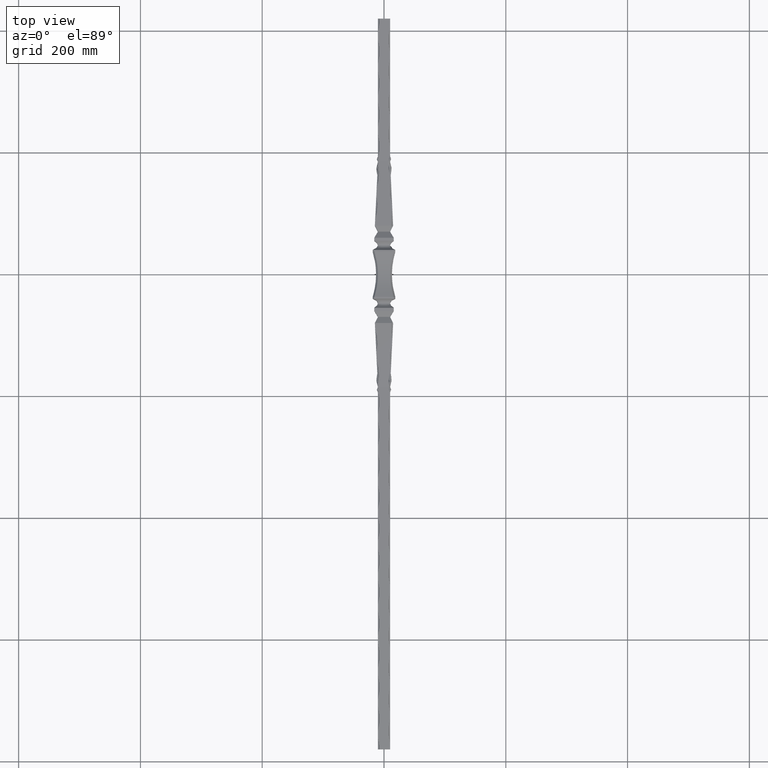
[diagram: clean part render]
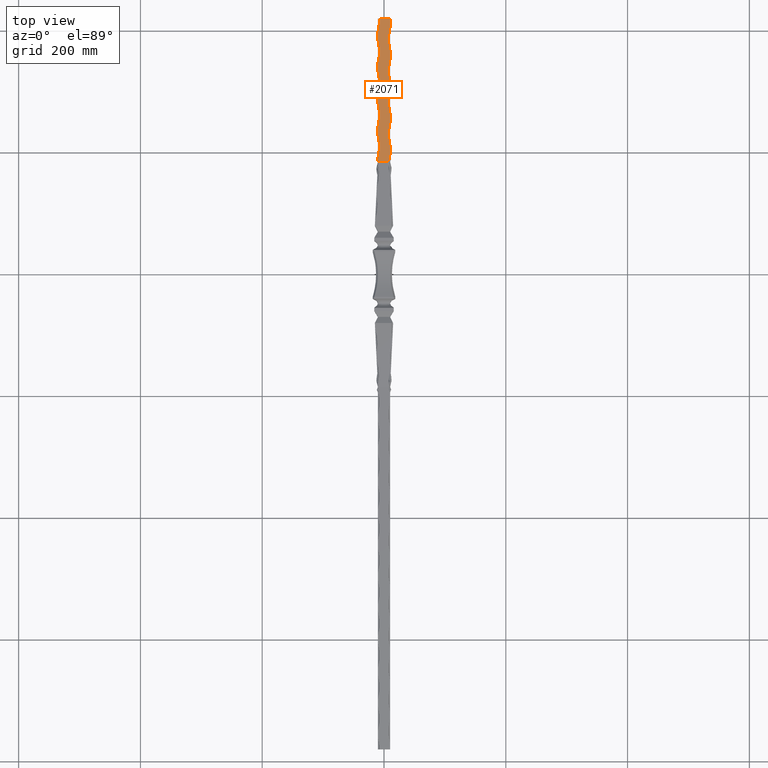
[diagram: same view with one face highlighted and labeled with its STEP entity id]
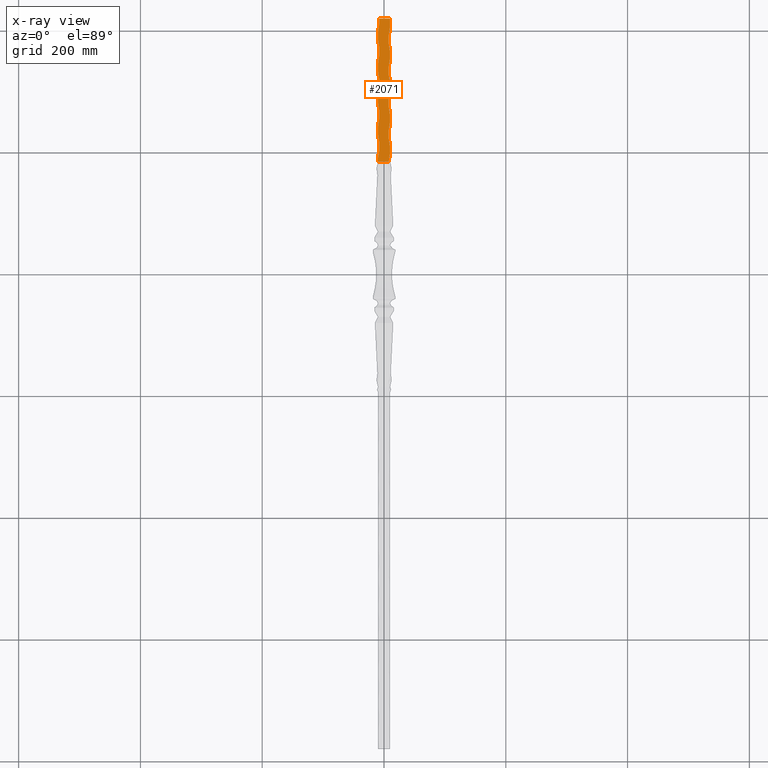
[diagram: x-ray of the same camera — body ghosted, the highlighted face saturated]
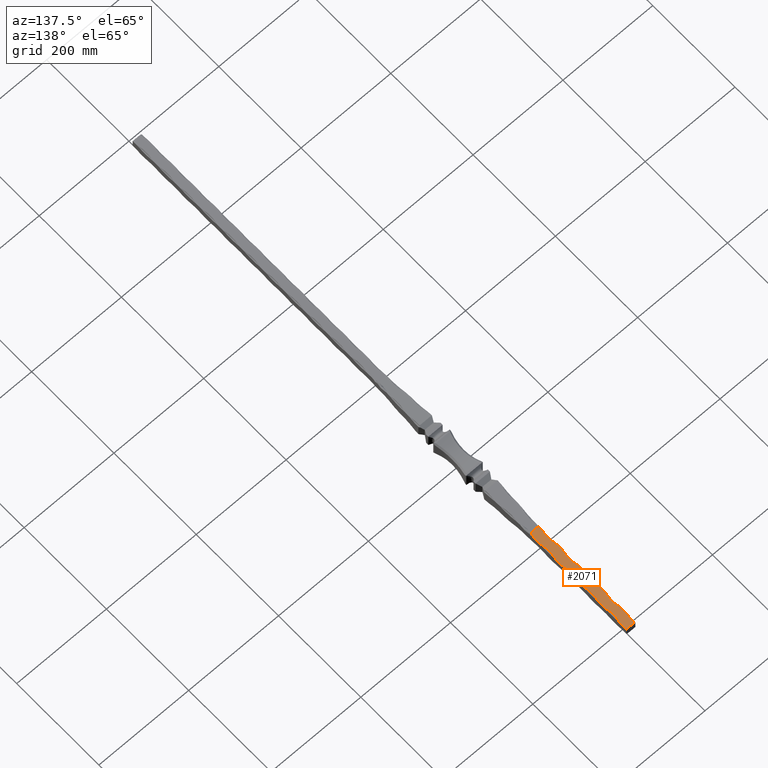
[diagram: same view with one face highlighted and labeled with its STEP entity id]
A machine part, top view. The second image highlights one B-rep face of the part: STEP entity #2071.
The next image is the same camera in x-ray: the body ghosted, the highlighted face saturated — about 0% of this face is hidden behind the body in this view.
A second angle (auxiliary view) of the same face is appended — the face is thin or edge-on in the first view.
In plain terms, the highlighted planar face has unit normal (0, 0, -1).
Its self-contained STEP definition (entity closure, byte-faithful):
#60 = DIRECTION ( 'NONE',  ( 0.000000000000000000, 0.000000000000000000, -1.000000000000000000 ) ) ;
#157 = CIRCLE ( 'NONE', #16085, 81.25000000000014211 ) ;
#267 = DIRECTION ( 'NONE',  ( -1.000000000000000000, 0.000000000000000000, 0.000000000000000000 ) ) ;
#363 = AXIS2_PLACEMENT_3D ( 'NONE', #1153, #60, #12587 ) ;
#414 = VECTOR ( 'NONE', #4325, 1000.000000000000000 ) ;
#455 = LINE ( 'NONE', #8635, #4330 ) ;
#489 = CARTESIAN_POINT ( 'NONE',  ( 88.75000000000036948, 386.0000000000000000, 9.999999999999319655 ) ) ;
#550 = CARTESIAN_POINT ( 'NONE',  ( 10.00000000000024336, 354.0000000000000568, 9.999999999999221956 ) ) ;
#568 = CARTESIAN_POINT ( 'NONE',  ( -10.00000000000083666, 346.0000000000000000, 10.00000000000000355 ) ) ;
#585 = LINE ( 'NONE', #13523, #7432 ) ;
#804 = VECTOR ( 'NONE', #13164, 1000.000000000000000 ) ;
#1121 = CARTESIAN_POINT ( 'NONE',  ( -7.524619114467154368, 420.0000000000000000, 10.00000000000000355 ) ) ;
#1130 = CARTESIAN_POINT ( 'NONE',  ( 88.75000000000049738, 178.0000000000000568, 9.999999999998928857 ) ) ;
#1139 = LINE ( 'NONE', #5008, #5456 ) ;
#1153 = CARTESIAN_POINT ( 'NONE',  ( 88.75000000000044054, 282.0000000000000000, 9.999999999999124256 ) ) ;
#1235 = DIRECTION ( 'NONE',  ( -0.000000000000000000, -1.000000000000000000, -0.000000000000000000 ) ) ;
#1242 = CARTESIAN_POINT ( 'NONE',  ( -88.75000000000098055, 366.0000000000000000, 10.00000000000000355 ) ) ;
#1275 = DIRECTION ( 'NONE',  ( 1.000000000000000000, 0.000000000000000000, 0.000000000000000000 ) ) ;
#1396 = CARTESIAN_POINT ( 'NONE',  ( 88.75000000000039790, 334.0000000000000000, 9.999999999999221956 ) ) ;
#1437 = DIRECTION ( 'NONE',  ( -0.000000000000000000, -1.000000000000000000, -0.000000000000000000 ) ) ;
#1511 = CARTESIAN_POINT ( 'NONE',  ( 7.802100089008209949, 185.0000000000000568, 9.999999999998928857 ) ) ;
#1602 = DIRECTION ( 'NONE',  ( -1.000000000000000000, 0.000000000000000000, 0.000000000000000000 ) ) ;
#1734 = ORIENTED_EDGE ( 'NONE', *, *, #8901, .T. ) ;
#1819 = CARTESIAN_POINT ( 'NONE',  ( 10.00000000000021139, 406.0000000000000000, 9.999999999999319655 ) ) ;
#2071 = ADVANCED_FACE ( 'NONE', ( #4288 ), #12557, .F. ) ;
#2081 = DIRECTION ( 'NONE',  ( -1.000000000000000000, 0.000000000000000000, 0.000000000000000000 ) ) ;
#2196 = ORIENTED_EDGE ( 'NONE', *, *, #4353, .T. ) ;
#2213 = DIRECTION ( 'NONE',  ( 1.000000000000000000, -0.000000000000000000, 0.000000000000000000 ) ) ;
#2330 = DIRECTION ( 'NONE',  ( -1.000000000000000000, 0.000000000000000000, 0.000000000000000000 ) ) ;
#2481 = CIRCLE ( 'NONE', #3539, 81.25000000000015632 ) ;
#2616 = EDGE_CURVE ( 'NONE', #3775, #4589, #3548, .T. ) ;
#2651 = DIRECTION ( 'NONE',  ( -1.000000000000000000, 0.000000000000000000, -0.000000000000000000 ) ) ;
#2782 = CARTESIAN_POINT ( 'NONE',  ( -88.75000000000133582, 209.9999999999999716, 10.00000000000000355 ) ) ;
#2862 = DIRECTION ( 'NONE',  ( -0.000000000000000000, -1.000000000000000000, -0.000000000000000000 ) ) ;
#3130 = VERTEX_POINT ( 'NONE', #568 ) ;
#3358 = CIRCLE ( 'NONE', #5136, 81.25000000000015632 ) ;
#3434 = ORIENTED_EDGE ( 'NONE', *, *, #7470, .T. ) ;
#3523 = AXIS2_PLACEMENT_3D ( 'NONE', #9897, #8482, #2330 ) ;
#3539 = AXIS2_PLACEMENT_3D ( 'NONE', #11005, #11216, #267 ) ;
#3548 = CIRCLE ( 'NONE', #4742, 81.25000000000012790 ) ;
#3562 = ORIENTED_EDGE ( 'NONE', *, *, #15142, .F. ) ;
#3605 = EDGE_CURVE ( 'NONE', #5842, #10032, #15010, .T. ) ;
#3643 = ORIENTED_EDGE ( 'NONE', *, *, #13001, .T. ) ;
#3775 = VERTEX_POINT ( 'NONE', #1121 ) ;
#4076 = CARTESIAN_POINT ( 'NONE',  ( -9.999999999999998224, 185.0000000000000000, 10.00000000000000355 ) ) ;
#4080 = CARTESIAN_POINT ( 'NONE',  ( 10.00000000000027178, 302.0000000000000568, 9.999999999999124256 ) ) ;
#4086 = EDGE_CURVE ( 'NONE', #10032, #10499, #11324, .T. ) ;
#4221 = VECTOR ( 'NONE', #11100, 1000.000000000000000 ) ;
#4283 = CIRCLE ( 'NONE', #3523, 81.25000000000014211 ) ;
#4288 = FACE_OUTER_BOUND ( 'NONE', #13156, .T. ) ;
#4325 = DIRECTION ( 'NONE',  ( -0.000000000000000000, -1.000000000000000000, -0.000000000000000000 ) ) ;
#4330 = VECTOR ( 'NONE', #2213, 1000.000000000000000 ) ;
#4353 = EDGE_CURVE ( 'NONE', #7944, #3130, #157, .T. ) ;
#4421 = ORIENTED_EDGE ( 'NONE', *, *, #16066, .T. ) ;
#4589 = VERTEX_POINT ( 'NONE', #13139 ) ;
#4601 = ORIENTED_EDGE ( 'NONE', *, *, #3605, .T. ) ;
#4610 = VERTEX_POINT ( 'NONE', #550 ) ;
#4620 = DIRECTION ( 'NONE',  ( -0.000000000000000000, -1.000000000000000000, -0.000000000000000000 ) ) ;
#4742 = AXIS2_PLACEMENT_3D ( 'NONE', #6980, #5884, #2081 ) ;
#4870 = CARTESIAN_POINT ( 'NONE',  ( -9.999999999999998224, 868.2842712474619020, 10.00000000000000355 ) ) ;
#4984 = ORIENTED_EDGE ( 'NONE', *, *, #11987, .T. ) ;
#5008 = CARTESIAN_POINT ( 'NONE',  ( 10.00000000000000178, 868.2842712474619020, 10.00000000000000355 ) ) ;
#5019 = CARTESIAN_POINT ( 'NONE',  ( -9.999999999999998224, 868.2842712474619020, 10.00000000000000355 ) ) ;
#5131 = CARTESIAN_POINT ( 'NONE',  ( 10.00000000000030909, 209.9999999999960778, 10.00000000000000888 ) ) ;
#5136 = AXIS2_PLACEMENT_3D ( 'NONE', #10010, #11325, #6200 ) ;
#5202 = CARTESIAN_POINT ( 'NONE',  ( -10.00000000000119726, 189.9999999999999432, 10.00000000000000355 ) ) ;
#5266 = EDGE_CURVE ( 'NONE', #3130, #14441, #13714, .T. ) ;
#5332 = CARTESIAN_POINT ( 'NONE',  ( 88.75000000000034106, 438.0000000000000000, 9.999999999999417355 ) ) ;
#5334 = DIRECTION ( 'NONE',  ( -1.000000000000000000, 0.000000000000000000, 0.000000000000000000 ) ) ;
#5456 = VECTOR ( 'NONE', #1437, 1000.000000000000000 ) ;
#5509 = VERTEX_POINT ( 'NONE', #5131 ) ;
#5706 = CIRCLE ( 'NONE', #8452, 81.25000000000015632 ) ;
#5786 = VERTEX_POINT ( 'NONE', #9238 ) ;
#5842 = VERTEX_POINT ( 'NONE', #9287 ) ;
#5884 = DIRECTION ( 'NONE',  ( 0.000000000000000000, 0.000000000000000000, -1.000000000000000000 ) ) ;
#5887 = LINE ( 'NONE', #8210, #804 ) ;
#5971 = DIRECTION ( 'NONE',  ( -1.000000000000000000, 0.000000000000000000, 0.000000000000000000 ) ) ;
#6200 = DIRECTION ( 'NONE',  ( -1.000000000000000000, 0.000000000000000000, 0.000000000000000000 ) ) ;
#6293 = VERTEX_POINT ( 'NONE', #13601 ) ;
#6335 = CIRCLE ( 'NONE', #363, 81.25000000000015632 ) ;
#6375 = CARTESIAN_POINT ( 'NONE',  ( -9.999999999999998224, 185.0000000000000000, 10.00000000000000355 ) ) ;
#6403 = ORIENTED_EDGE ( 'NONE', *, *, #10349, .T. ) ;
#6699 = AXIS2_PLACEMENT_3D ( 'NONE', #5332, #7771, #7711 ) ;
#6980 = CARTESIAN_POINT ( 'NONE',  ( -88.75000000000085265, 418.0000000000000000, 10.00000000000000355 ) ) ;
#7074 = AXIS2_PLACEMENT_3D ( 'NONE', #2782, #11389, #13907 ) ;
#7432 = VECTOR ( 'NONE', #4620, 1000.000000000000000 ) ;
#7449 = DIRECTION ( 'NONE',  ( 0.000000000000000000, 0.000000000000000000, -1.000000000000000000 ) ) ;
#7470 = EDGE_CURVE ( 'NONE', #5786, #11463, #6335, .T. ) ;
#7693 = ORIENTED_EDGE ( 'NONE', *, *, #13579, .F. ) ;
#7711 = DIRECTION ( 'NONE',  ( -1.000000000000000000, 0.000000000000000000, 0.000000000000000000 ) ) ;
#7771 = DIRECTION ( 'NONE',  ( 0.000000000000000000, 0.000000000000000000, -1.000000000000000000 ) ) ;
#7941 = CARTESIAN_POINT ( 'NONE',  ( -10.00000000000107825, 282.0000000000000000, 10.00000000000000888 ) ) ;
#7944 = VERTEX_POINT ( 'NONE', #12689 ) ;
#8031 = DIRECTION ( 'NONE',  ( -0.000000000000000000, -1.000000000000000000, -0.000000000000000000 ) ) ;
#8050 = CARTESIAN_POINT ( 'NONE',  ( -9.999999999999998224, 868.2842712474619020, 10.00000000000000355 ) ) ;
#8136 = VERTEX_POINT ( 'NONE', #8260 ) ;
#8210 = CARTESIAN_POINT ( 'NONE',  ( 10.00000000000000178, 868.2842712474619020, 10.00000000000000355 ) ) ;
#8216 = CARTESIAN_POINT ( 'NONE',  ( -9.999999999999998224, 868.2842712474619020, 10.00000000000000355 ) ) ;
#8239 = ORIENTED_EDGE ( 'NONE', *, *, #9914, .T. ) ;
#8260 = CARTESIAN_POINT ( 'NONE',  ( 10.00000000000030198, 250.0000000000000000, 9.999999999999026556 ) ) ;
#8269 = LINE ( 'NONE', #8050, #414 ) ;
#8452 = AXIS2_PLACEMENT_3D ( 'NONE', #1130, #7449, #5971 ) ;
#8482 = DIRECTION ( 'NONE',  ( 0.000000000000000000, 0.000000000000000000, -1.000000000000000000 ) ) ;
#8635 = CARTESIAN_POINT ( 'NONE',  ( -9.999999999999998224, 420.0000000000000000, 10.00000000000000355 ) ) ;
#8901 = EDGE_CURVE ( 'NONE', #10499, #15625, #10075, .T. ) ;
#8982 = VERTEX_POINT ( 'NONE', #7941 ) ;
#8995 = DIRECTION ( 'NONE',  ( -0.000000000000000000, -1.000000000000000000, -0.000000000000000000 ) ) ;
#9000 = CARTESIAN_POINT ( 'NONE',  ( 9.518929705575912337, 420.0000000000000000, 10.00000000000000355 ) ) ;
#9238 = CARTESIAN_POINT ( 'NONE',  ( 10.00000000000027889, 261.9999999999965326, 10.00000000000000888 ) ) ;
#9287 = CARTESIAN_POINT ( 'NONE',  ( -10.00000000000119726, 229.9999999999999716, 10.00000000000000888 ) ) ;
#9452 = CIRCLE ( 'NONE', #15339, 81.25000000000015632 ) ;
#9461 = CARTESIAN_POINT ( 'NONE',  ( -9.999999999999998224, 868.2842712474619020, 10.00000000000000355 ) ) ;
#9648 = ORIENTED_EDGE ( 'NONE', *, *, #5266, .T. ) ;
#9849 = CARTESIAN_POINT ( 'NONE',  ( 10.00000000000000178, 868.2842712474619020, 10.00000000000000355 ) ) ;
#9897 = CARTESIAN_POINT ( 'NONE',  ( -88.75000000000109424, 314.0000000000000000, 10.00000000000000355 ) ) ;
#9914 = EDGE_CURVE ( 'NONE', #8982, #6293, #3358, .T. ) ;
#9960 = LINE ( 'NONE', #15454, #14050 ) ;
#10010 = CARTESIAN_POINT ( 'NONE',  ( -88.75000000000122213, 262.0000000000000000, 10.00000000000000355 ) ) ;
#10032 = VERTEX_POINT ( 'NONE', #5202 ) ;
#10035 = CIRCLE ( 'NONE', #11994, 81.25000000000015632 ) ;
#10074 = CARTESIAN_POINT ( 'NONE',  ( 10.00000000000033396, 198.0000000000000568, 9.999999999998928857 ) ) ;
#10075 = LINE ( 'NONE', #6375, #13406 ) ;
#10215 = DIRECTION ( 'NONE',  ( 0.000000000000000000, 0.000000000000000000, -1.000000000000000000 ) ) ;
#10277 = EDGE_CURVE ( 'NONE', #3775, #16072, #455, .T. ) ;
#10349 = EDGE_CURVE ( 'NONE', #15625, #14995, #5706, .T. ) ;
#10465 = CARTESIAN_POINT ( 'NONE',  ( 10.00000000000025047, 313.9999999999968736, 10.00000000000000888 ) ) ;
#10499 = VERTEX_POINT ( 'NONE', #4076 ) ;
#10524 = ORIENTED_EDGE ( 'NONE', *, *, #2616, .T. ) ;
#10737 = VECTOR ( 'NONE', #8031, 1000.000000000000000 ) ;
#11005 = CARTESIAN_POINT ( 'NONE',  ( 88.75000000000046896, 229.9999999999999716, 9.999999999999026556 ) ) ;
#11008 = ORIENTED_EDGE ( 'NONE', *, *, #12737, .F. ) ;
#11100 = DIRECTION ( 'NONE',  ( -0.000000000000000000, -1.000000000000000000, -0.000000000000000000 ) ) ;
#11116 = ORIENTED_EDGE ( 'NONE', *, *, #13460, .T. ) ;
#11198 = ORIENTED_EDGE ( 'NONE', *, *, #13582, .T. ) ;
#11216 = DIRECTION ( 'NONE',  ( 0.000000000000000000, 0.000000000000000000, -1.000000000000000000 ) ) ;
#11234 = EDGE_CURVE ( 'NONE', #5509, #14995, #5887, .T. ) ;
#11324 = LINE ( 'NONE', #8216, #4221 ) ;
#11325 = DIRECTION ( 'NONE',  ( 0.000000000000000000, 0.000000000000000000, -1.000000000000000000 ) ) ;
#11388 = EDGE_CURVE ( 'NONE', #12845, #4610, #10035, .T. ) ;
#11389 = DIRECTION ( 'NONE',  ( 0.000000000000000000, 0.000000000000000000, -1.000000000000000000 ) ) ;
#11463 = VERTEX_POINT ( 'NONE', #4080 ) ;
#11514 = CIRCLE ( 'NONE', #6699, 81.25000000000015632 ) ;
#11607 = EDGE_CURVE ( 'NONE', #13608, #12477, #9452, .T. ) ;
#11693 = ORIENTED_EDGE ( 'NONE', *, *, #11607, .T. ) ;
#11839 = ORIENTED_EDGE ( 'NONE', *, *, #15612, .F. ) ;
#11987 = EDGE_CURVE ( 'NONE', #16094, #8982, #8269, .T. ) ;
#11994 = AXIS2_PLACEMENT_3D ( 'NONE', #1396, #10215, #1602 ) ;
#12001 = DIRECTION ( 'NONE',  ( -0.000000000000000000, -1.000000000000000000, -0.000000000000000000 ) ) ;
#12123 = CARTESIAN_POINT ( 'NONE',  ( -10.00000000000095746, 334.0000000000000000, 10.00000000000000888 ) ) ;
#12223 = EDGE_CURVE ( 'NONE', #14441, #16094, #4283, .T. ) ;
#12346 = LINE ( 'NONE', #9849, #16028 ) ;
#12477 = VERTEX_POINT ( 'NONE', #1819 ) ;
#12557 = PLANE ( 'NONE',  #13382 ) ;
#12587 = DIRECTION ( 'NONE',  ( -1.000000000000000000, 0.000000000000000000, 0.000000000000000000 ) ) ;
#12689 = CARTESIAN_POINT ( 'NONE',  ( -10.00000000000083666, 386.0000000000000000, 10.00000000000000888 ) ) ;
#12697 = CARTESIAN_POINT ( 'NONE',  ( 10.00000000000021849, 365.9999999999972715, 10.00000000000000888 ) ) ;
#12730 = DIRECTION ( 'NONE',  ( 0.000000000000000000, 0.000000000000000000, -1.000000000000000000 ) ) ;
#12737 = EDGE_CURVE ( 'NONE', #12845, #11463, #1139, .T. ) ;
#12845 = VERTEX_POINT ( 'NONE', #10465 ) ;
#12855 = CARTESIAN_POINT ( 'NONE',  ( -10.00000000000095746, 294.0000000000000000, 10.00000000000000355 ) ) ;
#12926 = VECTOR ( 'NONE', #12001, 1000.000000000000000 ) ;
#13001 = EDGE_CURVE ( 'NONE', #6293, #5842, #585, .T. ) ;
#13020 = DIRECTION ( 'NONE',  ( 0.000000000000000000, 0.000000000000000000, -1.000000000000000000 ) ) ;
#13045 = CARTESIAN_POINT ( 'NONE',  ( 10.00000000000000178, 868.2842712474619020, 10.00000000000000355 ) ) ;
#13139 = CARTESIAN_POINT ( 'NONE',  ( -10.00000000000071587, 397.9999999999999432, 10.00000000000000355 ) ) ;
#13156 = EDGE_LOOP ( 'NONE', ( #3643, #4601, #13998, #1734, #6403, #15963, #11198, #7693, #3434, #11008, #13533, #3562, #11693, #11839, #4421, #15941, #10524, #11116, #2196, #9648, #15124, #4984, #8239 ) ) ;
#13164 = DIRECTION ( 'NONE',  ( -0.000000000000000000, -1.000000000000000000, -0.000000000000000000 ) ) ;
#13382 = AXIS2_PLACEMENT_3D ( 'NONE', #5019, #15102, #2651 ) ;
#13406 = VECTOR ( 'NONE', #1275, 1000.000000000000000 ) ;
#13460 = EDGE_CURVE ( 'NONE', #4589, #7944, #15641, .T. ) ;
#13469 = LINE ( 'NONE', #13045, #10737 ) ;
#13523 = CARTESIAN_POINT ( 'NONE',  ( -9.999999999999998224, 868.2842712474619020, 10.00000000000000355 ) ) ;
#13533 = ORIENTED_EDGE ( 'NONE', *, *, #11388, .T. ) ;
#13579 = EDGE_CURVE ( 'NONE', #5786, #8136, #12346, .T. ) ;
#13582 = EDGE_CURVE ( 'NONE', #5509, #8136, #2481, .T. ) ;
#13601 = CARTESIAN_POINT ( 'NONE',  ( -10.00000000000107825, 242.0000000000000000, 10.00000000000000355 ) ) ;
#13608 = VERTEX_POINT ( 'NONE', #12697 ) ;
#13714 = LINE ( 'NONE', #9461, #12926 ) ;
#13824 = DIRECTION ( 'NONE',  ( -1.000000000000000000, 0.000000000000000000, 0.000000000000000000 ) ) ;
#13907 = DIRECTION ( 'NONE',  ( -1.000000000000000000, 0.000000000000000000, 0.000000000000000000 ) ) ;
#13952 = CARTESIAN_POINT ( 'NONE',  ( 10.00000000000018296, 418.0000000000000000, 9.999999999999417355 ) ) ;
#13998 = ORIENTED_EDGE ( 'NONE', *, *, #4086, .T. ) ;
#14050 = VECTOR ( 'NONE', #8995, 1000.000000000000000 ) ;
#14441 = VERTEX_POINT ( 'NONE', #12123 ) ;
#14472 = VECTOR ( 'NONE', #1235, 1000.000000000000000 ) ;
#14985 = VERTEX_POINT ( 'NONE', #13952 ) ;
#14995 = VERTEX_POINT ( 'NONE', #10074 ) ;
#15010 = CIRCLE ( 'NONE', #7074, 81.25000000000014211 ) ;
#15102 = DIRECTION ( 'NONE',  ( 0.000000000000000000, 0.000000000000000000, -1.000000000000000000 ) ) ;
#15124 = ORIENTED_EDGE ( 'NONE', *, *, #12223, .T. ) ;
#15142 = EDGE_CURVE ( 'NONE', #13608, #4610, #9960, .T. ) ;
#15339 = AXIS2_PLACEMENT_3D ( 'NONE', #489, #13020, #5334 ) ;
#15454 = CARTESIAN_POINT ( 'NONE',  ( 10.00000000000000178, 868.2842712474619020, 10.00000000000000355 ) ) ;
#15612 = EDGE_CURVE ( 'NONE', #14985, #12477, #13469, .T. ) ;
#15625 = VERTEX_POINT ( 'NONE', #1511 ) ;
#15641 = LINE ( 'NONE', #4870, #14472 ) ;
#15941 = ORIENTED_EDGE ( 'NONE', *, *, #10277, .F. ) ;
#15963 = ORIENTED_EDGE ( 'NONE', *, *, #11234, .F. ) ;
#16028 = VECTOR ( 'NONE', #2862, 1000.000000000000000 ) ;
#16066 = EDGE_CURVE ( 'NONE', #14985, #16072, #11514, .T. ) ;
#16072 = VERTEX_POINT ( 'NONE', #9000 ) ;
#16085 = AXIS2_PLACEMENT_3D ( 'NONE', #1242, #12730, #13824 ) ;
#16094 = VERTEX_POINT ( 'NONE', #12855 ) ;